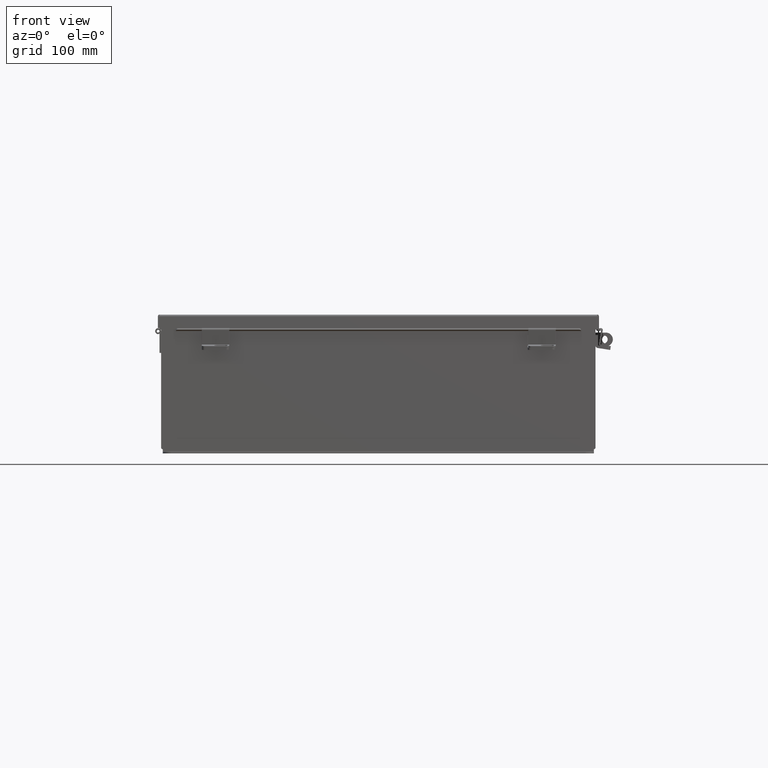
[diagram: clean part render]
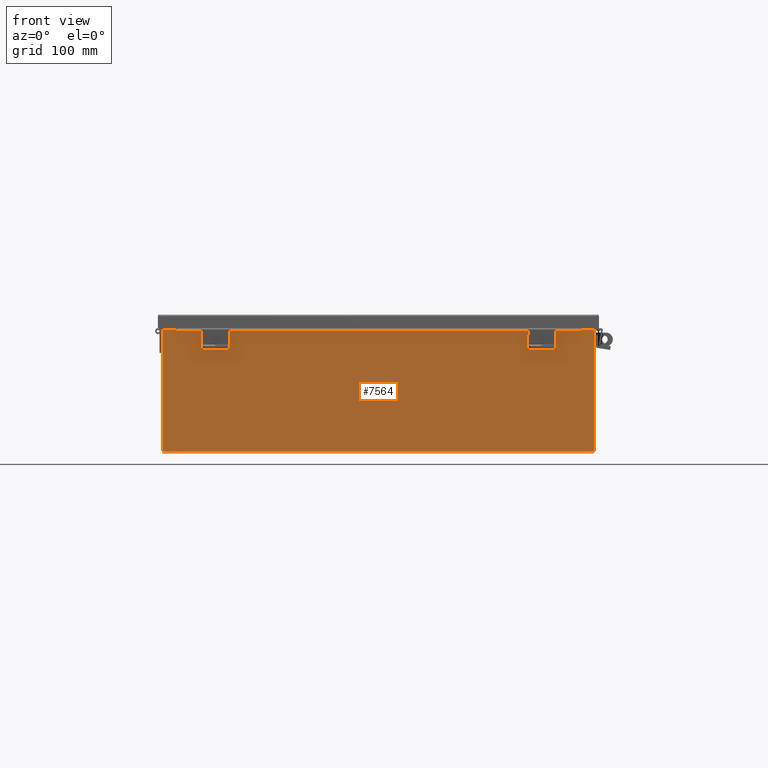
[diagram: same view with one face highlighted and labeled with its STEP entity id]
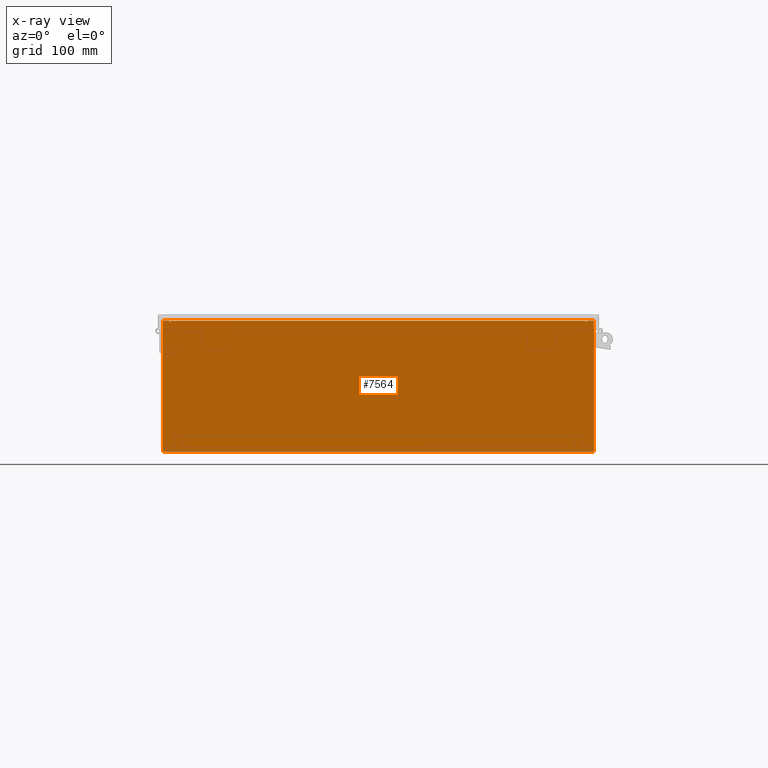
[diagram: x-ray of the same camera — body ghosted, the highlighted face saturated]
A machine part, front view. The second image highlights one B-rep face of the part: STEP entity #7564.
The next image is the same camera in x-ray: the body ghosted, the highlighted face saturated — about 0% of this face is hidden behind the body in this view.
In plain terms, the highlighted planar face has unit normal (-0, 1, -0).
Its self-contained STEP definition (entity closure, byte-faithful):
#3 = ORIENTED_EDGE ( 'NONE', *, *, #4732, .T. ) ;
#249 = CARTESIAN_POINT ( 'NONE',  ( -9.619649999999991200, 0.0000000000000000000, 2.925300000000000000 ) ) ;
#418 = VECTOR ( 'NONE', #18776, 39.37007874015748100 ) ;
#719 = DIRECTION ( 'NONE',  ( 0.0000000000000000000, 0.0000000000000000000, 1.000000000000000000 ) ) ;
#748 = DIRECTION ( 'NONE',  ( 0.0000000000000000000, 0.0000000000000000000, -1.000000000000000000 ) ) ;
#764 = AXIS2_PLACEMENT_3D ( 'NONE', #2805, #2749, #2717 ) ;
#1170 = CARTESIAN_POINT ( 'NONE',  ( -9.582299999999989400, 2.185478394931410600E-015, 2.912300000000000100 ) ) ;
#1852 = CARTESIAN_POINT ( 'NONE',  ( -9.925300000000016000, 0.0000000000000000000, 2.925300000000000000 ) ) ;
#1980 = EDGE_CURVE ( 'NONE', #12851, #24419, #11733, .T. ) ;
#2027 = DIRECTION ( 'NONE',  ( 1.000000000000000000, 4.910036603141682400E-031, 0.0000000000000000000 ) ) ;
#2061 = PLANE ( 'NONE',  #16492 ) ;
#2073 = ORIENTED_EDGE ( 'NONE', *, *, #1980, .F. ) ;
#2385 = DIRECTION ( 'NONE',  ( 0.0000000000000000000, 0.0000000000000000000, -1.000000000000000000 ) ) ;
#2396 = VECTOR ( 'NONE', #21470, 39.37007874015748100 ) ;
#2536 = VECTOR ( 'NONE', #2385, 39.37007874015748100 ) ;
#2717 = DIRECTION ( 'NONE',  ( 0.0000000000000000000, 0.0000000000000000000, -1.000000000000000000 ) ) ;
#2722 = LINE ( 'NONE', #23155, #2536 ) ;
#2749 = DIRECTION ( 'NONE',  ( 4.910036603141682400E-031, 1.000000000000000000, -0.0000000000000000000 ) ) ;
#2805 = CARTESIAN_POINT ( 'NONE',  ( -9.600974999999989400, 0.0000000000000000000, 2.874949999999998800 ) ) ;
#3101 = LINE ( 'NONE', #1170, #13226 ) ;
#3331 = CARTESIAN_POINT ( 'NONE',  ( 9.925300000000000000, 0.0000000000000000000, -3.099299999999995500 ) ) ;
#3637 = CARTESIAN_POINT ( 'NONE',  ( -9.925299999999992900, -2.185478394931410600E-015, -3.099299999999999900 ) ) ;
#3824 = VECTOR ( 'NONE', #23044, 39.37007874015748100 ) ;
#4129 = DIRECTION ( 'NONE',  ( -4.910036603141682400E-031, -1.000000000000000000, -0.0000000000000000000 ) ) ;
#4200 = LINE ( 'NONE', #1852, #9215 ) ;
#4385 = ORIENTED_EDGE ( 'NONE', *, *, #23309, .T. ) ;
#4732 = EDGE_CURVE ( 'NONE', #12851, #9525, #22798, .T. ) ;
#4846 = CARTESIAN_POINT ( 'NONE',  ( 9.925299999999985800, 1.748382715945128500E-014, 2.925300000000000000 ) ) ;
#5371 = ORIENTED_EDGE ( 'NONE', *, *, #18635, .T. ) ;
#5519 = VERTEX_POINT ( 'NONE', #249 ) ;
#5845 = EDGE_CURVE ( 'NONE', #9525, #12293, #13391, .T. ) ;
#6309 = VECTOR ( 'NONE', #6316, 39.37007874015748100 ) ;
#6316 = DIRECTION ( 'NONE',  ( -2.170286390199931800E-014, -7.888609052210118100E-031, -1.000000000000000000 ) ) ;
#6616 = EDGE_CURVE ( 'NONE', #6941, #5519, #14155, .T. ) ;
#6941 = VERTEX_POINT ( 'NONE', #14331 ) ;
#7340 = CARTESIAN_POINT ( 'NONE',  ( -9.582299999999991200, 2.185478394931410600E-015, 2.912300000000000100 ) ) ;
#7564 = ADVANCED_FACE ( 'NONE', ( #23967 ), #2061, .F. ) ;
#7943 = CIRCLE ( 'NONE', #764, 0.01867500000000003900 ) ;
#7970 = VERTEX_POINT ( 'NONE', #10459 ) ;
#8017 = CARTESIAN_POINT ( 'NONE',  ( 9.600975000000010700, 1.748382715945128500E-014, 2.874949999999997900 ) ) ;
#8038 = CARTESIAN_POINT ( 'NONE',  ( 0.0000000000000000000, 0.0000000000000000000, 0.0000000000000000000 ) ) ;
#9215 = VECTOR ( 'NONE', #2027, 39.37007874015748100 ) ;
#9302 = CARTESIAN_POINT ( 'NONE',  ( 9.619650000000012500, 1.748382715945128500E-014, 2.925300000000000000 ) ) ;
#9525 = VERTEX_POINT ( 'NONE', #4846 ) ;
#9658 = EDGE_CURVE ( 'NONE', #13302, #12293, #17113, .T. ) ;
#9760 = CARTESIAN_POINT ( 'NONE',  ( -9.925299999999996500, -2.185478394931410600E-015, -3.099299999999999900 ) ) ;
#10205 = ORIENTED_EDGE ( 'NONE', *, *, #24129, .F. ) ;
#10336 = DIRECTION ( 'NONE',  ( 0.0000000000000000000, 0.0000000000000000000, -1.000000000000000000 ) ) ;
#10459 = CARTESIAN_POINT ( 'NONE',  ( 9.582300000000010700, 1.748382715945128500E-014, 2.912300000000000100 ) ) ;
#10483 = EDGE_CURVE ( 'NONE', #22452, #6941, #7943, .T. ) ;
#11048 = ORIENTED_EDGE ( 'NONE', *, *, #19914, .F. ) ;
#11601 = VECTOR ( 'NONE', #11685, 39.37007874015748100 ) ;
#11685 = DIRECTION ( 'NONE',  ( -3.735477378271307500E-016, 0.0000000000000000000, -1.000000000000000000 ) ) ;
#11733 = LINE ( 'NONE', #22561, #6309 ) ;
#11811 = AXIS2_PLACEMENT_3D ( 'NONE', #8017, #12320, #748 ) ;
#12293 = VERTEX_POINT ( 'NONE', #3331 ) ;
#12320 = DIRECTION ( 'NONE',  ( 4.910036603141682400E-031, 1.000000000000000000, -0.0000000000000000000 ) ) ;
#12851 = VERTEX_POINT ( 'NONE', #9302 ) ;
#12857 = CARTESIAN_POINT ( 'NONE',  ( -9.619649999999998300, 0.0000000000000000000, 0.0000000000000000000 ) ) ;
#13226 = VECTOR ( 'NONE', #13623, 39.37007874015748100 ) ;
#13302 = VERTEX_POINT ( 'NONE', #3637 ) ;
#13391 = LINE ( 'NONE', #17279, #11601 ) ;
#13623 = DIRECTION ( 'NONE',  ( 1.000000000000000000, 4.910036603141682400E-031, -0.0000000000000000000 ) ) ;
#14155 = LINE ( 'NONE', #12857, #418 ) ;
#14316 = EDGE_CURVE ( 'NONE', #17324, #22452, #2722, .T. ) ;
#14331 = CARTESIAN_POINT ( 'NONE',  ( -9.619649999999991200, 0.0000000000000000000, 2.874949999999998800 ) ) ;
#15110 = ORIENTED_EDGE ( 'NONE', *, *, #9658, .F. ) ;
#15526 = CARTESIAN_POINT ( 'NONE',  ( -9.925300000000016000, 0.0000000000000000000, 2.925300000000000000 ) ) ;
#16252 = VERTEX_POINT ( 'NONE', #19822 ) ;
#16378 = ORIENTED_EDGE ( 'NONE', *, *, #10483, .F. ) ;
#16492 = AXIS2_PLACEMENT_3D ( 'NONE', #8038, #4129, #10336 ) ;
#16513 = CARTESIAN_POINT ( 'NONE',  ( -9.925300000000016000, 0.0000000000000000000, 2.925300000000000000 ) ) ;
#17113 = LINE ( 'NONE', #9760, #3824 ) ;
#17279 = CARTESIAN_POINT ( 'NONE',  ( 9.925299999999985800, 1.748382715945128500E-014, 2.925300000000000000 ) ) ;
#17324 = VERTEX_POINT ( 'NONE', #7340 ) ;
#17381 = CARTESIAN_POINT ( 'NONE',  ( 9.582300000000001800, 0.0000000000000000000, 0.0000000000000000000 ) ) ;
#17670 = LINE ( 'NONE', #16513, #2396 ) ;
#18034 = ORIENTED_EDGE ( 'NONE', *, *, #23006, .T. ) ;
#18635 = EDGE_CURVE ( 'NONE', #17324, #7970, #3101, .T. ) ;
#18776 = DIRECTION ( 'NONE',  ( 0.0000000000000000000, 0.0000000000000000000, 1.000000000000000000 ) ) ;
#18781 = ORIENTED_EDGE ( 'NONE', *, *, #14316, .F. ) ;
#19822 = CARTESIAN_POINT ( 'NONE',  ( 9.582300000000010700, 1.748382715945128500E-014, 2.874949999999998800 ) ) ;
#19914 = EDGE_CURVE ( 'NONE', #16252, #7970, #22065, .T. ) ;
#20482 = CARTESIAN_POINT ( 'NONE',  ( -9.925300000000016000, 0.0000000000000000000, 2.925300000000000000 ) ) ;
#20505 = CARTESIAN_POINT ( 'NONE',  ( 9.619650000000010700, 1.748382715945128500E-014, 2.874949999999997900 ) ) ;
#20996 = CIRCLE ( 'NONE', #11811, 0.01867500000000003900 ) ;
#21470 = DIRECTION ( 'NONE',  ( 0.0000000000000000000, 0.0000000000000000000, 1.000000000000000000 ) ) ;
#21763 = VECTOR ( 'NONE', #719, 39.37007874015748100 ) ;
#22065 = LINE ( 'NONE', #17381, #21763 ) ;
#22452 = VERTEX_POINT ( 'NONE', #24052 ) ;
#22561 = CARTESIAN_POINT ( 'NONE',  ( 9.619649999999939600, 0.0000000000000000000, -2.043422299260868900E-013 ) ) ;
#22798 = LINE ( 'NONE', #20482, #24360 ) ;
#23006 = EDGE_CURVE ( 'NONE', #23770, #5519, #4200, .T. ) ;
#23044 = DIRECTION ( 'NONE',  ( 1.000000000000000000, 4.910036603141682400E-031, -0.0000000000000000000 ) ) ;
#23155 = CARTESIAN_POINT ( 'NONE',  ( -9.582299999999998300, 0.0000000000000000000, 4.370956789862821100E-015 ) ) ;
#23197 = ORIENTED_EDGE ( 'NONE', *, *, #6616, .F. ) ;
#23309 = EDGE_CURVE ( 'NONE', #13302, #23770, #17670, .T. ) ;
#23710 = DIRECTION ( 'NONE',  ( 1.000000000000000000, 4.910036603141682400E-031, 0.0000000000000000000 ) ) ;
#23770 = VERTEX_POINT ( 'NONE', #15526 ) ;
#23967 = FACE_OUTER_BOUND ( 'NONE', #24481, .T. ) ;
#24052 = CARTESIAN_POINT ( 'NONE',  ( -9.582299999999991200, 0.0000000000000000000, 2.874949999999998800 ) ) ;
#24058 = ORIENTED_EDGE ( 'NONE', *, *, #5845, .T. ) ;
#24129 = EDGE_CURVE ( 'NONE', #24419, #16252, #20996, .T. ) ;
#24360 = VECTOR ( 'NONE', #23710, 39.37007874015748100 ) ;
#24419 = VERTEX_POINT ( 'NONE', #20505 ) ;
#24481 = EDGE_LOOP ( 'NONE', ( #23197, #16378, #18781, #5371, #11048, #10205, #2073, #3, #24058, #15110, #4385, #18034 ) ) ;